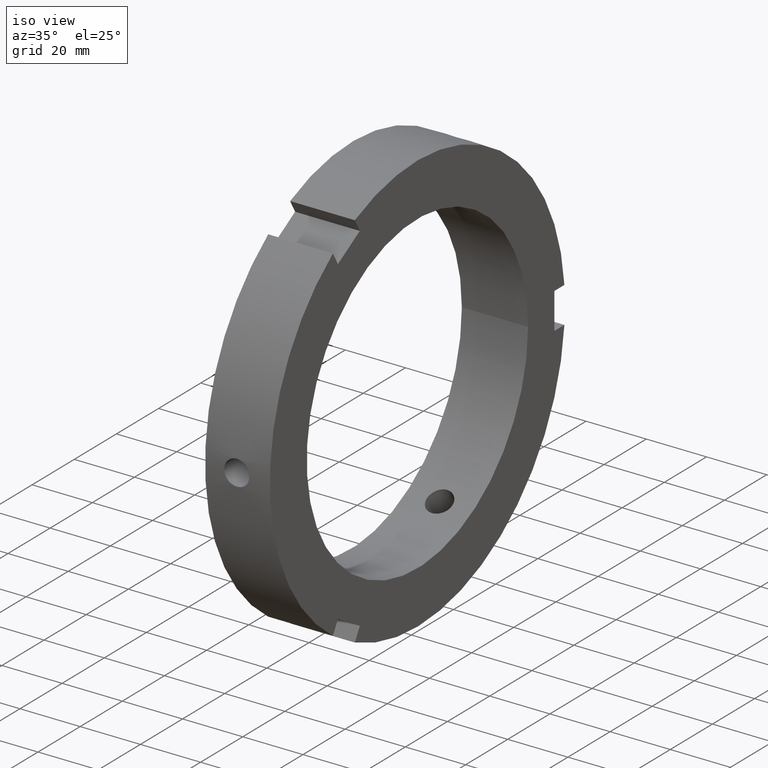
[diagram: clean part render]
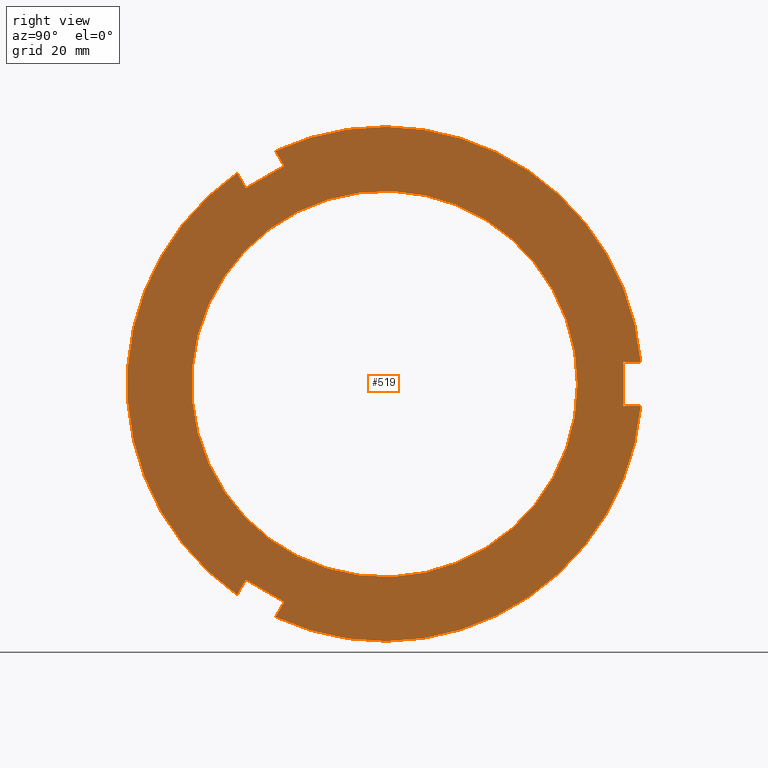
[diagram: tour spotlight — one face highlighted and labeled with its STEP entity id]
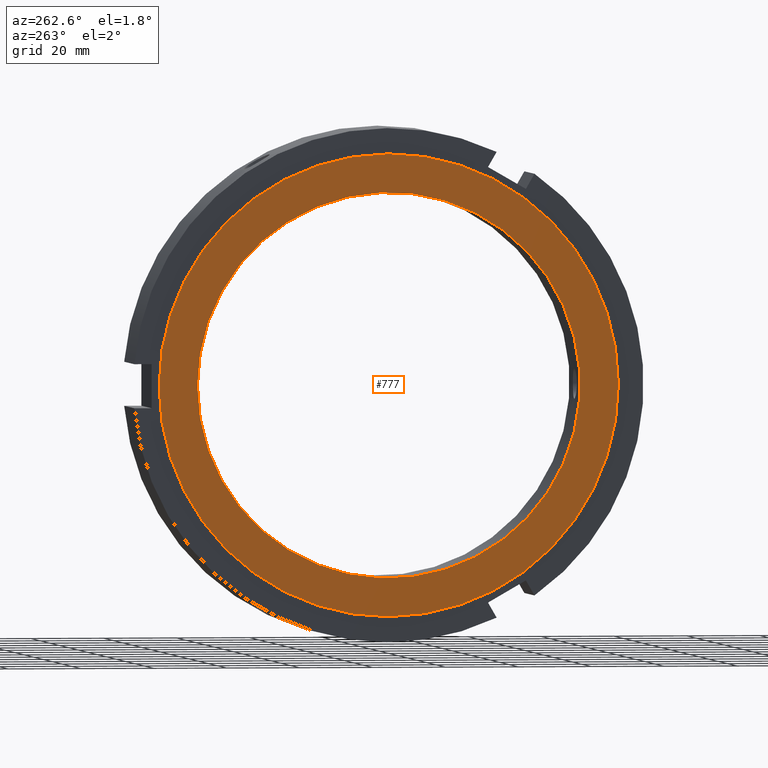
[diagram: tour spotlight — one face highlighted and labeled with its STEP entity id]
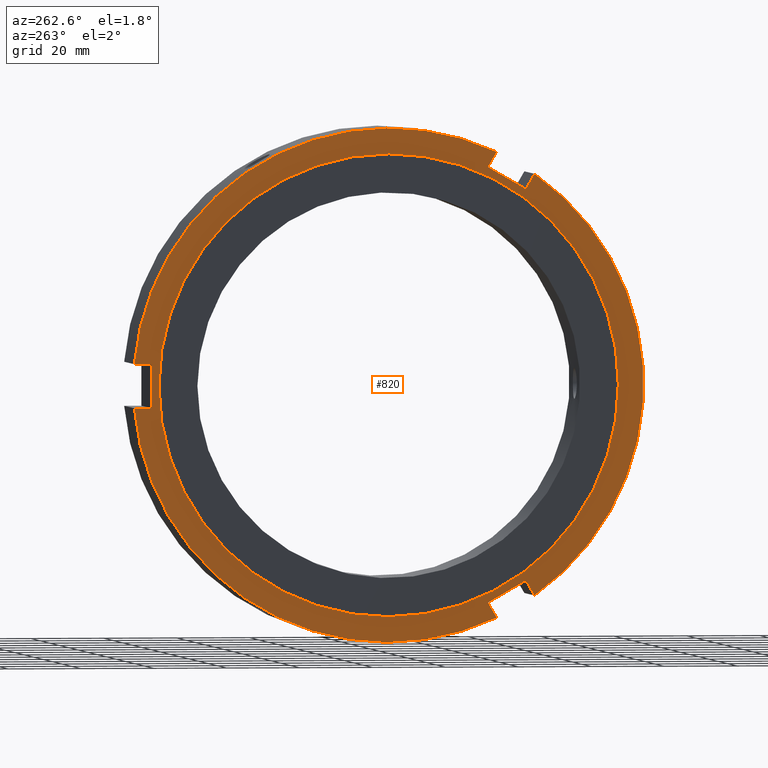
[diagram: tour spotlight — one face highlighted and labeled with its STEP entity id]
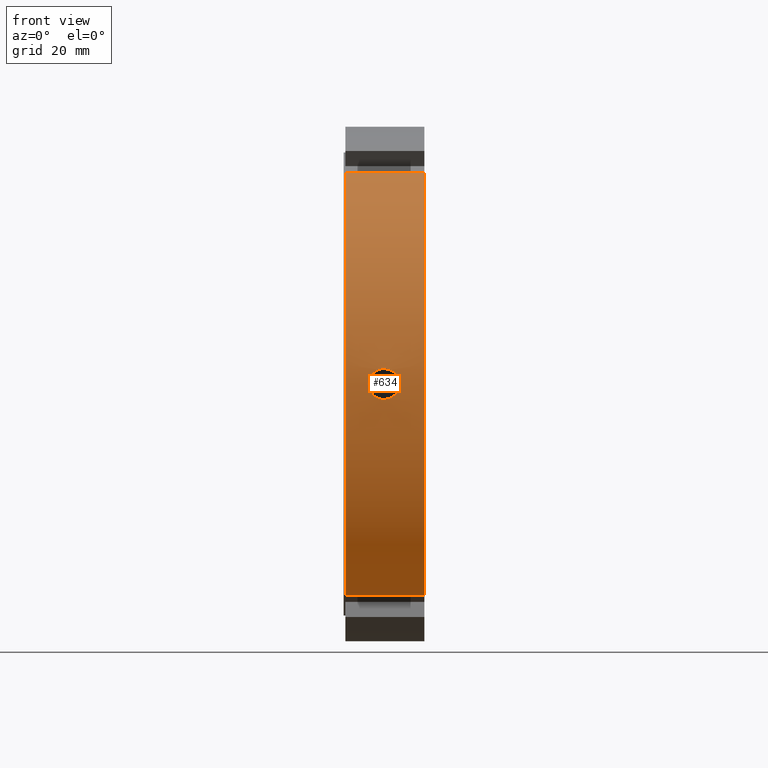
[diagram: tour spotlight — one face highlighted and labeled with its STEP entity id]
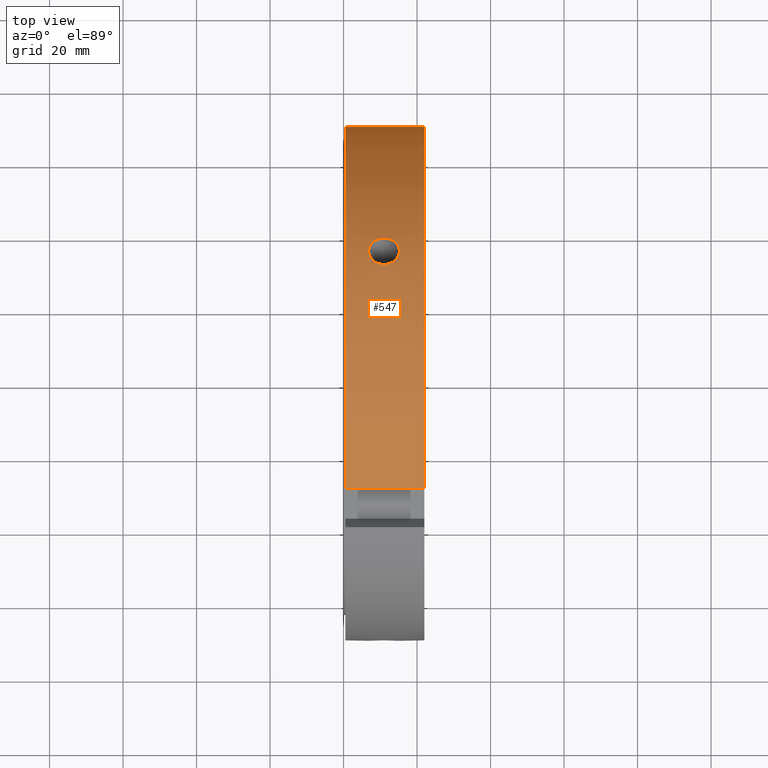
[diagram: tour spotlight — one face highlighted and labeled with its STEP entity id]
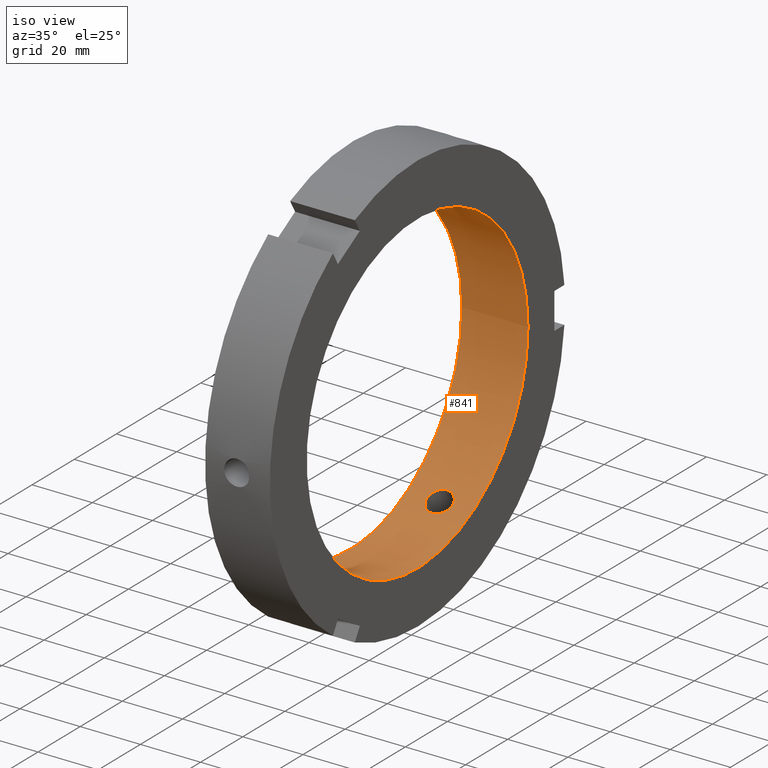
[diagram: tour spotlight — one face highlighted and labeled with its STEP entity id]
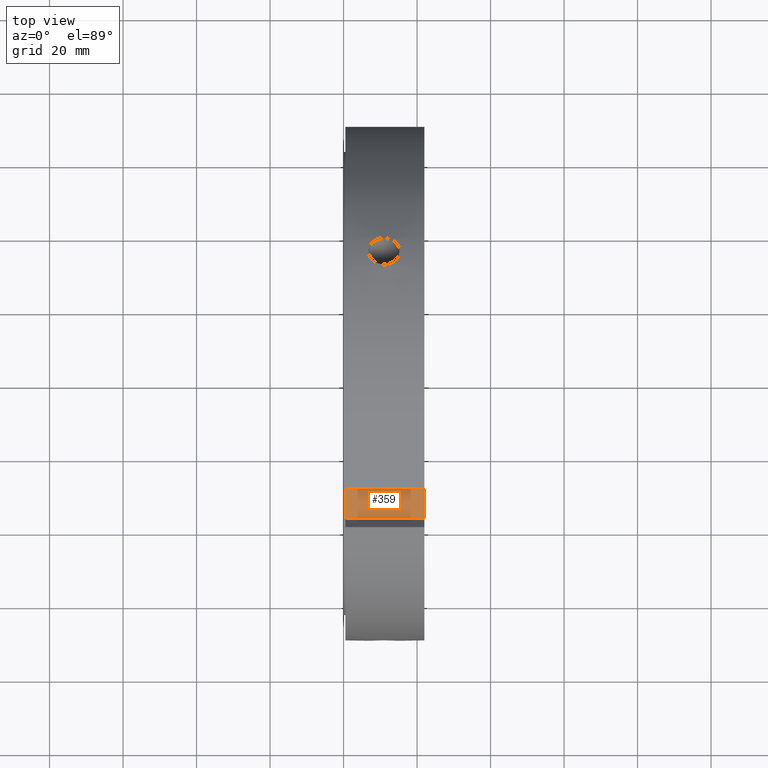
[diagram: tour spotlight — one face highlighted and labeled with its STEP entity id]
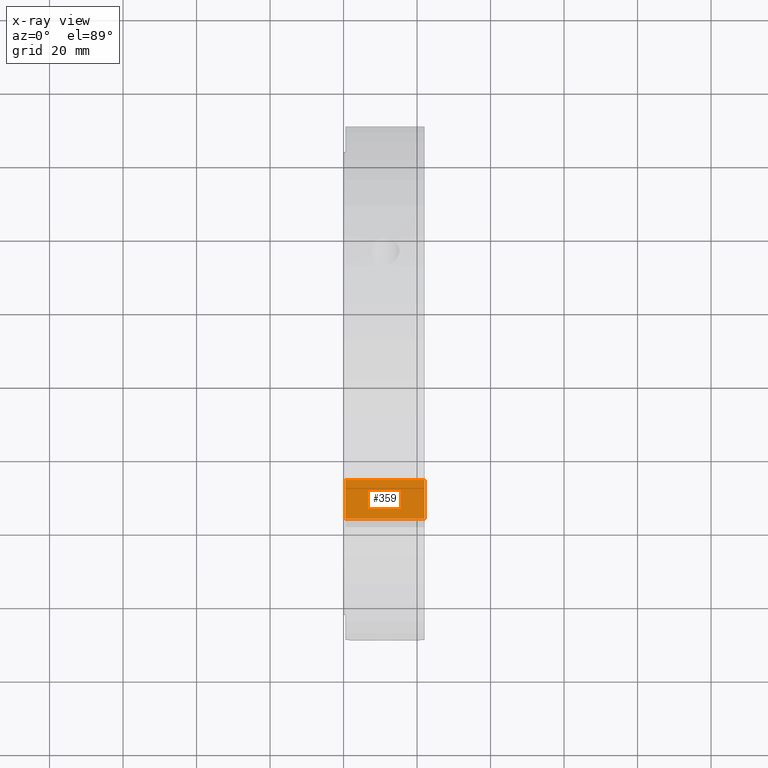
[diagram: x-ray of the same camera — body ghosted, this tour face saturated]
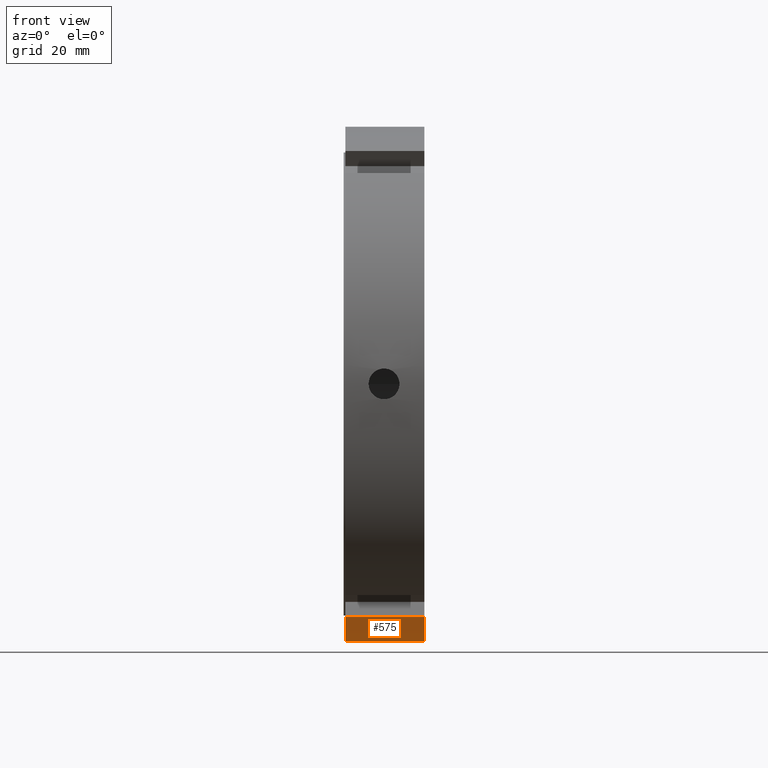
[diagram: tour spotlight — one face highlighted and labeled with its STEP entity id]
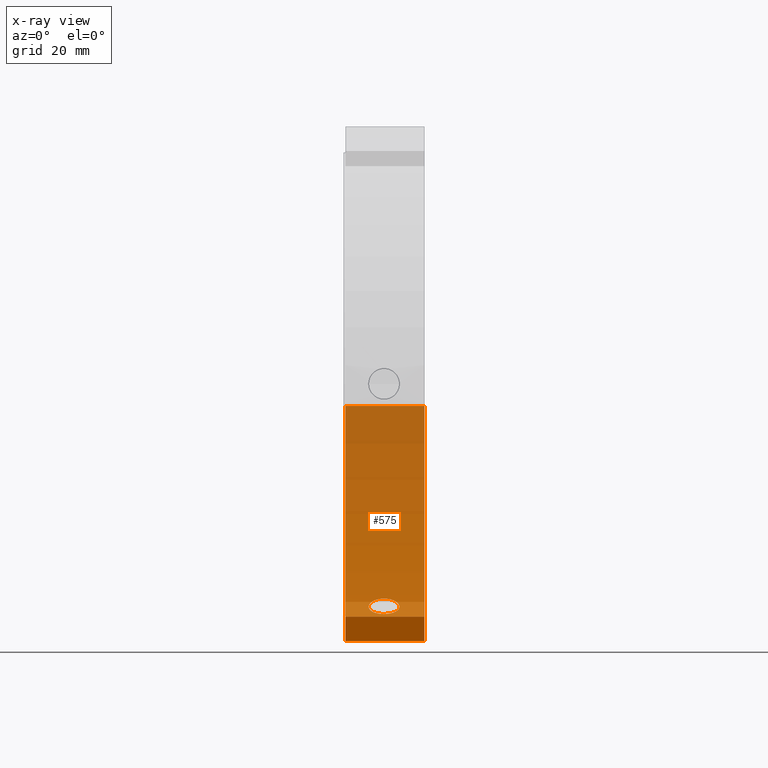
[diagram: x-ray of the same camera — body ghosted, this tour face saturated]
A machine part: a face-by-face anatomy tour. The part has 20 B-rep faces; the first image is the clean iso view, then the 8 largest visible faces are spotlighted one at a time (largest first), each with its STEP entity span.

Face 1 — right view, entity #519. In plain terms, the highlighted planar face has unit normal (1, 0, 0).
Definition (entity closure, byte-faithful):
#83=CARTESIAN_POINT('',(21.999999999999989,-37.696152422706668,-53.291651245988504));
#84=VERTEX_POINT('',#83);
#91=CARTESIAN_POINT('',(21.999999999999989,-40.067343971032045,-57.398675482165977));
#92=VERTEX_POINT('',#91);
#93=CARTESIAN_POINT('',(21.999999999999989,-40.067343971032074,-57.398675482165977));
#94=DIRECTION('',(0.0,0.500000000000001,0.866025403784438));
#95=VECTOR('',#94,4.742383096650764);
#96=LINE('',#93,#95);
#97=EDGE_CURVE('',#92,#84,#96,.T.);
#123=CARTESIAN_POINT('',(21.999999999999989,-29.675039125618788,-63.398675482165991));
#124=VERTEX_POINT('',#123);
#131=CARTESIAN_POINT('',(21.999999999999989,-27.303847577293404,-59.291651245988504));
#132=VERTEX_POINT('',#131);
#133=CARTESIAN_POINT('',(21.999999999999989,-27.303847577293414,-59.291651245988511));
#134=DIRECTION('',(0.0,-0.500000000000000,-0.866025403784439));
#135=VECTOR('',#134,4.742383096650786);
#136=LINE('',#133,#135);
#137=EDGE_CURVE('',#132,#124,#136,.T.);
#160=CARTESIAN_POINT('',(21.999999999999989,-37.696152422706675,-53.291651245988504));
#161=DIRECTION('',(0.0,0.866025403784438,-0.500000000000001));
#162=VECTOR('',#161,11.999999999999998);
#163=LINE('',#160,#162);
#164=EDGE_CURVE('',#84,#132,#163,.T.);
#273=CARTESIAN_POINT('',(21.999999999999989,-27.303847577293361,59.291651245988525));
#274=VERTEX_POINT('',#273);
#281=CARTESIAN_POINT('',(21.999999999999989,-29.675039125618742,63.398675482165999));
#282=VERTEX_POINT('',#281);
#283=CARTESIAN_POINT('',(21.999999999999989,-29.675039125618746,63.398675482165999));
#284=DIRECTION('',(0.0,0.499999999999999,-0.866025403784439));
#285=VECTOR('',#284,4.742383096650767);
#286=LINE('',#283,#285);
#287=EDGE_CURVE('',#282,#274,#286,.T.);
#313=CARTESIAN_POINT('',(21.999999999999989,-40.067343971032010,57.398675482166006));
#314=VERTEX_POINT('',#313);
#321=CARTESIAN_POINT('',(21.999999999999989,-37.696152422706618,53.291651245988525));
#322=VERTEX_POINT('',#321);
#323=CARTESIAN_POINT('',(21.999999999999989,-37.696152422706632,53.291651245988533));
#324=DIRECTION('',(0.0,-0.500000000000000,0.866025403784439));
#325=VECTOR('',#324,4.742383096650770);
#326=LINE('',#323,#325);
#327=EDGE_CURVE('',#322,#314,#326,.T.);
#350=CARTESIAN_POINT('',(21.999999999999989,-27.303847577293368,59.291651245988533));
#351=DIRECTION('',(0.0,-0.866025403784439,-0.500000000000000));
#352=VECTOR('',#351,11.999999999999996);
#353=LINE('',#350,#352);
#354=EDGE_CURVE('',#274,#322,#353,.T.);
#448=CARTESIAN_POINT('',(21.999999999999989,61.250000000000000,0.0));
#449=DIRECTION('',(1.0,0.0,0.0));
#450=DIRECTION('',(0.0,0.0,-1.0));
#451=AXIS2_PLACEMENT_3D('',#448,#449,#450);
#452=PLANE('',#451);
#453=ORIENTED_EDGE('',*,*,#97,.T.);
#454=ORIENTED_EDGE('',*,*,#164,.T.);
#455=ORIENTED_EDGE('',*,*,#137,.T.);
#456=CARTESIAN_POINT('',(21.999999999999989,69.742383096650769,-5.999999999999998));
#457=VERTEX_POINT('',#456);
#458=CARTESIAN_POINT('',(21.999999999999986,0.0,0.0));
#459=DIRECTION('',(1.0,0.0,0.0));
#460=DIRECTION('',(0.0,1.0,0.0));
#461=AXIS2_PLACEMENT_3D('',#458,#459,#460);
#462=CIRCLE('',#461,70.0);
#463=EDGE_CURVE('',#124,#457,#462,.T.);
#464=ORIENTED_EDGE('',*,*,#463,.T.);
#465=CARTESIAN_POINT('',(21.999999999999989,65.0,-5.999999999999997));
#466=VERTEX_POINT('',#465);
#467=CARTESIAN_POINT('',(21.999999999999989,69.742383096650769,-5.999999999999998));
#468=DIRECTION('',(0.0,-1.0,0.0));
#469=VECTOR('',#468,4.742383096650769);
#470=LINE('',#467,#469);
#471=EDGE_CURVE('',#457,#466,#470,.T.);
#472=ORIENTED_EDGE('',*,*,#471,.T.);
#473=CARTESIAN_POINT('',(21.999999999999989,65.0,5.999999999999997));
#474=VERTEX_POINT('',#473);
#475=CARTESIAN_POINT('',(21.999999999999989,65.0,-5.999999999999998));
#476=DIRECTION('',(0.0,0.0,1.0));
#477=VECTOR('',#476,11.999999999999996);
#478=LINE('',#475,#477);
#479=EDGE_CURVE('',#466,#474,#478,.T.);
#480=ORIENTED_EDGE('',*,*,#479,.T.);
#481=CARTESIAN_POINT('',(21.999999999999989,69.742383096650769,5.999999999999998));
#482=VERTEX_POINT('',#481);
#483=CARTESIAN_POINT('',(21.999999999999989,65.0,5.999999999999997));
#484=DIRECTION('',(0.0,1.0,0.0));
#485=VECTOR('',#484,4.742383096650769);
#486=LINE('',#483,#485);
#487=EDGE_CURVE('',#474,#482,#486,.T.);
#488=ORIENTED_EDGE('',*,*,#487,.T.);
#489=CARTESIAN_POINT('',(21.999999999999986,0.0,0.0));
#490=DIRECTION('',(1.0,0.0,0.0));
#491=DIRECTION('',(0.0,1.0,0.0));
#492=AXIS2_PLACEMENT_3D('',#489,#490,#491);
#493=CIRCLE('',#492,70.0);
#494=EDGE_CURVE('',#482,#282,#493,.T.);
#495=ORIENTED_EDGE('',*,*,#494,.T.);
#496=ORIENTED_EDGE('',*,*,#287,.T.);
#497=ORIENTED_EDGE('',*,*,#354,.T.);
#498=ORIENTED_EDGE('',*,*,#327,.T.);
#499=CARTESIAN_POINT('',(21.999999999999986,0.0,0.0));
#500=DIRECTION('',(1.0,0.0,0.0));
#501=DIRECTION('',(0.0,1.0,0.0));
#502=AXIS2_PLACEMENT_3D('',#499,#500,#501);
#503=CIRCLE('',#502,70.0);
#504=EDGE_CURVE('',#314,#92,#503,.T.);
#505=ORIENTED_EDGE('',*,*,#504,.T.);
#506=EDGE_LOOP('',(#453,#454,#455,#464,#472,#480,#488,#495,#496,#497,#498,#505));
#507=FACE_OUTER_BOUND('',#506,.T.);
#508=CARTESIAN_POINT('',(21.999999999999993,52.500000000000000,0.0));
#509=VERTEX_POINT('',#508);
#510=CARTESIAN_POINT('',(21.999999999999993,0.0,0.0));
#511=DIRECTION('',(1.0,0.0,0.0));
#512=DIRECTION('',(0.0,1.0,0.0));
#513=AXIS2_PLACEMENT_3D('',#510,#511,#512);
#514=CIRCLE('',#513,52.500000000000000);
#515=EDGE_CURVE('',#509,#509,#514,.T.);
#516=ORIENTED_EDGE('',*,*,#515,.F.);
#517=EDGE_LOOP('',(#516));
#518=FACE_BOUND('',#517,.T.);
#519=ADVANCED_FACE('',(#507,#518),#452,.T.);

Face 2 — auxiliary view, entity #777. In plain terms, the highlighted planar face has unit normal (-1, 0, 0).
Definition (entity closure, byte-faithful):
#750=CARTESIAN_POINT('',(-1.647145E-014,57.750000000000000,0.0));
#751=DIRECTION('',(-1.0,0.0,0.0));
#752=DIRECTION('',(0.0,0.0,1.0));
#753=AXIS2_PLACEMENT_3D('',#750,#751,#752);
#754=PLANE('',#753);
#755=CARTESIAN_POINT('',(-1.776357E-014,63.000000000000007,0.0));
#756=VERTEX_POINT('',#755);
#757=CARTESIAN_POINT('',(-1.776357E-014,0.0,0.0));
#758=DIRECTION('',(1.0,0.0,0.0));
#759=DIRECTION('',(0.0,1.0,0.0));
#760=AXIS2_PLACEMENT_3D('',#757,#758,#759);
#761=CIRCLE('',#760,63.000000000000007);
#762=EDGE_CURVE('',#756,#756,#761,.T.);
#763=ORIENTED_EDGE('',*,*,#762,.F.);
#764=EDGE_LOOP('',(#763));
#765=FACE_OUTER_BOUND('',#764,.T.);
#766=CARTESIAN_POINT('',(-1.517934E-014,52.500000000000000,0.0));
#767=VERTEX_POINT('',#766);
#768=CARTESIAN_POINT('',(-1.517883E-014,0.0,0.0));
#769=DIRECTION('',(1.0,0.0,0.0));
#770=DIRECTION('',(0.0,1.0,0.0));
#771=AXIS2_PLACEMENT_3D('',#768,#769,#770);
#772=CIRCLE('',#771,52.500000000000000);
#773=EDGE_CURVE('',#767,#767,#772,.T.);
#774=ORIENTED_EDGE('',*,*,#773,.T.);
#775=EDGE_LOOP('',(#774));
#776=FACE_BOUND('',#775,.T.);
#777=ADVANCED_FACE('',(#765,#776),#754,.T.);

Face 3 — auxiliary view, entity #820. In plain terms, the highlighted planar face has unit normal (-1, 0, 0).
Definition (entity closure, byte-faithful):
#73=CARTESIAN_POINT('',(0.499999999999980,-37.696152422706668,-53.291651245988504));
#74=VERTEX_POINT('',#73);
#75=CARTESIAN_POINT('',(0.499999999999980,-40.067343971032045,-57.398675482165977));
#76=VERTEX_POINT('',#75);
#77=CARTESIAN_POINT('',(0.499999999999980,-37.696152422706675,-53.291651245988511));
#78=DIRECTION('',(0.0,-0.500000000000001,-0.866025403784438));
#79=VECTOR('',#78,4.742383096650764);
#80=LINE('',#77,#79);
#81=EDGE_CURVE('',#74,#76,#80,.T.);
#113=CARTESIAN_POINT('',(0.499999999999980,-29.675039125618788,-63.398675482165991));
#114=VERTEX_POINT('',#113);
#115=CARTESIAN_POINT('',(0.499999999999980,-27.303847577293404,-59.291651245988504));
#116=VERTEX_POINT('',#115);
#117=CARTESIAN_POINT('',(0.499999999999980,-29.675039125618802,-63.398675482165999));
#118=DIRECTION('',(0.0,0.500000000000000,0.866025403784439));
#119=VECTOR('',#118,4.742383096650786);
#120=LINE('',#117,#119);
#121=EDGE_CURVE('',#114,#116,#120,.T.);
#153=CARTESIAN_POINT('',(0.499999999999980,-27.303847577293421,-59.291651245988518));
#154=DIRECTION('',(0.0,-0.866025403784438,0.500000000000001));
#155=VECTOR('',#154,12.0);
#156=LINE('',#153,#155);
#157=EDGE_CURVE('',#116,#74,#156,.T.);
#263=CARTESIAN_POINT('',(0.499999999999980,-27.303847577293361,59.291651245988525));
#264=VERTEX_POINT('',#263);
#265=CARTESIAN_POINT('',(0.499999999999980,-29.675039125618742,63.398675482165999));
#266=VERTEX_POINT('',#265);
#267=CARTESIAN_POINT('',(0.499999999999978,-27.303847577293361,59.291651245988533));
#268=DIRECTION('',(0.0,-0.500000000000000,0.866025403784439));
#269=VECTOR('',#268,4.742383096650770);
#270=LINE('',#267,#269);
#271=EDGE_CURVE('',#264,#266,#270,.T.);
#303=CARTESIAN_POINT('',(0.499999999999980,-40.067343971032010,57.398675482166006));
#304=VERTEX_POINT('',#303);
#305=CARTESIAN_POINT('',(0.499999999999980,-37.696152422706618,53.291651245988525));
#306=VERTEX_POINT('',#305);
#307=CARTESIAN_POINT('',(0.499999999999980,-40.067343971032003,57.398675482166006));
#308=DIRECTION('',(0.0,0.500000000000000,-0.866025403784439));
#309=VECTOR('',#308,4.742383096650770);
#310=LINE('',#307,#309);
#311=EDGE_CURVE('',#304,#306,#310,.T.);
#343=CARTESIAN_POINT('',(0.499999999999983,-37.696152422706632,53.291651245988518));
#344=DIRECTION('',(0.0,0.866025403784439,0.500000000000000));
#345=VECTOR('',#344,12.000000000000004);
#346=LINE('',#343,#345);
#347=EDGE_CURVE('',#306,#264,#346,.T.);
#527=CARTESIAN_POINT('',(0.499999999999980,69.742383096650769,5.999999999999998));
#528=VERTEX_POINT('',#527);
#535=CARTESIAN_POINT('',(0.499999999999980,0.0,0.0));
#536=DIRECTION('',(1.0,0.0,0.0));
#537=DIRECTION('',(0.0,1.0,0.0));
#538=AXIS2_PLACEMENT_3D('',#535,#536,#537);
#539=CIRCLE('',#538,70.0);
#540=EDGE_CURVE('',#528,#266,#539,.T.);
#554=CARTESIAN_POINT('',(0.499999999999980,69.742383096650769,-5.999999999999998));
#555=VERTEX_POINT('',#554);
#556=CARTESIAN_POINT('',(0.499999999999980,0.0,0.0));
#557=DIRECTION('',(1.0,0.0,0.0));
#558=DIRECTION('',(0.0,1.0,0.0));
#559=AXIS2_PLACEMENT_3D('',#556,#557,#558);
#560=CIRCLE('',#559,70.0);
#561=EDGE_CURVE('',#114,#555,#560,.T.);
#584=CARTESIAN_POINT('',(0.499999999999980,0.0,0.0));
#585=DIRECTION('',(1.0,0.0,0.0));
#586=DIRECTION('',(0.0,1.0,0.0));
#587=AXIS2_PLACEMENT_3D('',#584,#585,#586);
#588=CIRCLE('',#587,70.0);
#589=EDGE_CURVE('',#304,#76,#588,.T.);
#690=CARTESIAN_POINT('',(0.499999999999980,65.0,-5.999999999999997));
#691=VERTEX_POINT('',#690);
#692=CARTESIAN_POINT('',(0.499999999999980,65.0,-5.999999999999997));
#693=DIRECTION('',(0.0,1.0,0.0));
#694=VECTOR('',#693,4.742383096650769);
#695=LINE('',#692,#694);
#696=EDGE_CURVE('',#691,#555,#695,.T.);
#714=CARTESIAN_POINT('',(0.499999999999980,65.0,5.999999999999997));
#715=VERTEX_POINT('',#714);
#716=CARTESIAN_POINT('',(0.499999999999980,69.742383096650769,5.999999999999998));
#717=DIRECTION('',(0.0,-1.0,0.0));
#718=VECTOR('',#717,4.742383096650769);
#719=LINE('',#716,#718);
#720=EDGE_CURVE('',#528,#715,#719,.T.);
#738=CARTESIAN_POINT('',(0.499999999999980,65.0,5.999999999999997));
#739=DIRECTION('',(0.0,0.0,-1.0));
#740=VECTOR('',#739,11.999999999999996);
#741=LINE('',#738,#740);
#742=EDGE_CURVE('',#715,#691,#741,.T.);
#783=CARTESIAN_POINT('',(0.499999999999980,63.000000000000007,0.0));
#784=VERTEX_POINT('',#783);
#785=CARTESIAN_POINT('',(0.499999999999980,0.0,0.0));
#786=DIRECTION('',(1.0,0.0,0.0));
#787=DIRECTION('',(0.0,1.0,0.0));
#788=AXIS2_PLACEMENT_3D('',#785,#786,#787);
#789=CIRCLE('',#788,63.000000000000007);
#790=EDGE_CURVE('',#784,#784,#789,.T.);
#798=CARTESIAN_POINT('',(0.499999999999980,66.500000000000000,0.0));
#799=DIRECTION('',(-1.0,0.0,0.0));
#800=DIRECTION('',(0.0,0.0,1.0));
#801=AXIS2_PLACEMENT_3D('',#798,#799,#800);
#802=PLANE('',#801);
#803=ORIENTED_EDGE('',*,*,#81,.T.);
#804=ORIENTED_EDGE('',*,*,#589,.F.);
#805=ORIENTED_EDGE('',*,*,#311,.T.);
#806=ORIENTED_EDGE('',*,*,#347,.T.);
#807=ORIENTED_EDGE('',*,*,#271,.T.);
#808=ORIENTED_EDGE('',*,*,#540,.F.);
#809=ORIENTED_EDGE('',*,*,#720,.T.);
#810=ORIENTED_EDGE('',*,*,#742,.T.);
#811=ORIENTED_EDGE('',*,*,#696,.T.);
#812=ORIENTED_EDGE('',*,*,#561,.F.);
#813=ORIENTED_EDGE('',*,*,#121,.T.);
#814=ORIENTED_EDGE('',*,*,#157,.T.);
#815=EDGE_LOOP('',(#803,#804,#805,#806,#807,#808,#809,#810,#811,#812,#813,#814));
#816=FACE_OUTER_BOUND('',#815,.T.);
#817=ORIENTED_EDGE('',*,*,#790,.T.);
#818=EDGE_LOOP('',(#817));
#819=FACE_BOUND('',#818,.T.);
#820=ADVANCED_FACE('',(#816,#819),#802,.T.);

Face 4 — front view, entity #634. In plain terms, the highlighted cylindrical surface (partial cylindrical patch) has radius 70 mm, axis along (1, 0, 0).
Definition (entity closure, byte-faithful):
#75=CARTESIAN_POINT('',(0.499999999999980,-40.067343971032045,-57.398675482165977));
#76=VERTEX_POINT('',#75);
#91=CARTESIAN_POINT('',(21.999999999999989,-40.067343971032045,-57.398675482165977));
#92=VERTEX_POINT('',#91);
#99=CARTESIAN_POINT('',(0.499999999999980,-40.067343971032052,-57.398675482165977));
#100=DIRECTION('',(1.0,0.0,0.0));
#101=VECTOR('',#100,21.500000000000007);
#102=LINE('',#99,#101);
#103=EDGE_CURVE('',#76,#92,#102,.T.);
#303=CARTESIAN_POINT('',(0.499999999999980,-40.067343971032010,57.398675482166006));
#304=VERTEX_POINT('',#303);
#313=CARTESIAN_POINT('',(21.999999999999989,-40.067343971032010,57.398675482166006));
#314=VERTEX_POINT('',#313);
#315=CARTESIAN_POINT('',(21.999999999999989,-40.067343971032010,57.398675482166006));
#316=DIRECTION('',(-1.0,0.0,0.0));
#317=VECTOR('',#316,21.500000000000007);
#318=LINE('',#315,#317);
#319=EDGE_CURVE('',#314,#304,#318,.T.);
#499=CARTESIAN_POINT('',(21.999999999999986,0.0,0.0));
#500=DIRECTION('',(1.0,0.0,0.0));
#501=DIRECTION('',(0.0,1.0,0.0));
#502=AXIS2_PLACEMENT_3D('',#499,#500,#501);
#503=CIRCLE('',#502,70.0);
#504=EDGE_CURVE('',#314,#92,#503,.T.);
#576=CARTESIAN_POINT('',(11.249999999999982,0.0,0.0));
#577=DIRECTION('',(1.0,0.0,0.0));
#578=DIRECTION('',(0.0,1.0,0.0));
#579=AXIS2_PLACEMENT_3D('',#576,#577,#578);
#580=CYLINDRICAL_SURFACE('',#579,70.0);
#581=ORIENTED_EDGE('',*,*,#103,.T.);
#582=ORIENTED_EDGE('',*,*,#504,.F.);
#583=ORIENTED_EDGE('',*,*,#319,.T.);
#584=CARTESIAN_POINT('',(0.499999999999980,0.0,0.0));
#585=DIRECTION('',(1.0,0.0,0.0));
#586=DIRECTION('',(0.0,1.0,0.0));
#587=AXIS2_PLACEMENT_3D('',#584,#585,#586);
#588=CIRCLE('',#587,70.0);
#589=EDGE_CURVE('',#304,#76,#588,.T.);
#590=ORIENTED_EDGE('',*,*,#589,.T.);
#591=EDGE_LOOP('',(#581,#582,#583,#590));
#592=FACE_OUTER_BOUND('',#591,.T.);
#593=CARTESIAN_POINT('',(10.999999999999982,-69.874606660789155,4.188000000000000));
#594=VERTEX_POINT('',#593);
#595=CARTESIAN_POINT('',(10.999999999999982,-69.874606660789155,4.188000000000000));
#596=CARTESIAN_POINT('',(11.525989483648210,-69.874606660789155,4.188000000000000));
#597=CARTESIAN_POINT('',(12.086952821734933,-69.881157045057151,4.082855158809846));
#598=CARTESIAN_POINT('',(13.118752284293532,-69.904819251661607,3.655415369750317));
#599=CARTESIAN_POINT('',(13.589599069054628,-69.921589788627202,3.333127330163877));
#600=CARTESIAN_POINT('',(14.333127169007863,-69.953073070988069,2.589599230210645));
#601=CARTESIAN_POINT('',(14.655415331156282,-69.969830503275844,2.118752372942516));
#602=CARTESIAN_POINT('',(15.082855220814963,-69.993462738686361,1.086952676573749));
#603=CARTESIAN_POINT('',(15.187999999999985,-70.0,0.525989255637096));
#604=CARTESIAN_POINT('',(15.187999999999985,-70.0,-0.525989255637096));
#605=CARTESIAN_POINT('',(15.082855220814968,-69.993462738686361,-1.086952676573747));
#606=CARTESIAN_POINT('',(14.655415331156288,-69.969830503275844,-2.118752372942514));
#607=CARTESIAN_POINT('',(14.333127169007863,-69.953073070988069,-2.589599230210644));
#608=CARTESIAN_POINT('',(13.589599069054630,-69.921589788627202,-3.333127330163876));
#609=CARTESIAN_POINT('',(13.118752284293532,-69.904819251661607,-3.655415369750317));
#610=CARTESIAN_POINT('',(12.086952821734933,-69.881157045057151,-4.082855158809846));
#611=CARTESIAN_POINT('',(11.525989483648210,-69.874606660789155,-4.188000000000000));
#612=CARTESIAN_POINT('',(10.474010516351754,-69.874606660789155,-4.188000000000000));
#613=CARTESIAN_POINT('',(9.913047178265032,-69.881157045057151,-4.082855158809847));
#614=CARTESIAN_POINT('',(8.881247715706435,-69.904819251661607,-3.655415369750317));
#615=CARTESIAN_POINT('',(8.410400930945340,-69.921589788627202,-3.333127330163876));
#616=CARTESIAN_POINT('',(7.666872830992107,-69.953073070988069,-2.589599230210645));
#617=CARTESIAN_POINT('',(7.344584668843685,-69.969830503275844,-2.118752372942517));
#618=CARTESIAN_POINT('',(6.917144779185001,-69.993462738686361,-1.086952676573749));
#619=CARTESIAN_POINT('',(6.811999999999983,-70.0,-0.525989255637097));
#620=CARTESIAN_POINT('',(6.811999999999983,-70.0,0.525989255637095));
#621=CARTESIAN_POINT('',(6.917144779185001,-69.993462738686361,1.086952676573747));
#622=CARTESIAN_POINT('',(7.344584668843682,-69.969830503275844,2.118752372942514));
#623=CARTESIAN_POINT('',(7.666872830992104,-69.953073070988069,2.589599230210643));
#624=CARTESIAN_POINT('',(8.410400930945338,-69.921589788627202,3.333127330163876));
#625=CARTESIAN_POINT('',(8.881247715706435,-69.904819251661607,3.655415369750317));
#626=CARTESIAN_POINT('',(9.913047178265032,-69.881157045057151,4.082855158809847));
#627=CARTESIAN_POINT('',(10.474010516351752,-69.874606660789155,4.188000000000000));
#628=CARTESIAN_POINT('',(10.999999999999980,-69.874606660789155,4.188000000000000));
#629=B_SPLINE_CURVE_WITH_KNOTS('',3,(#595,#596,#597,#598,#599,#600,#601,#602,#603,#604,#605,#606,#607,#608,#609,#610,#611,#612,#613,#614,#615,#616,#617,#618,#619,#620,#621,#622,#623,#624,#625,#626,#627,#628),.UNSPECIFIED.,.T.,.U.,(4,2,2,2,2,2,2,2,2,2,2,2,2,2,2,2,4),(0.0,0.157796845094469,0.315593690188937,0.473390466880066,0.631187243571195,0.788984020262324,0.946780796953452,1.104577642047921,1.262374487142389,1.420171332236858,1.577968177331326,1.735764954022455,1.893561730713584,2.051358507404713,2.209155284095842,2.366952129190310,2.524748974284779),.UNSPECIFIED.);
#630=EDGE_CURVE('',#594,#594,#629,.T.);
#631=ORIENTED_EDGE('',*,*,#630,.T.);
#632=EDGE_LOOP('',(#631));
#633=FACE_BOUND('',#632,.T.);
#634=ADVANCED_FACE('',(#592,#633),#580,.T.);

Face 5 — top view, entity #547. In plain terms, the highlighted cylindrical surface (partial cylindrical patch) has radius 70 mm, axis along (1, 0, 0).
Definition (entity closure, byte-faithful):
#175=CARTESIAN_POINT('',(10.999999999999982,38.564217721443832,58.419184447688735));
#176=VERTEX_POINT('',#175);
#177=CARTESIAN_POINT('',(10.999999999999982,38.564217721443825,58.419184447688735));
#178=CARTESIAN_POINT('',(11.525989483648210,38.564217721443825,58.419184447688735));
#179=CARTESIAN_POINT('',(12.086952821734940,38.476434810030270,58.477429667464456));
#180=CARTESIAN_POINT('',(13.118752284293533,38.118092197418676,58.711641634023259));
#181=CARTESIAN_POINT('',(13.589599069054630,37.847367836283745,58.887309364863810));
#182=CARTESIAN_POINT('',(14.333127169007863,37.219195254477100,59.286338737159440));
#183=CARTESIAN_POINT('',(14.655415331156279,36.819808630934723,59.536274527856925));
#184=CARTESIAN_POINT('',(15.082855220814961,35.938059999967557,60.072640492255033));
#185=CARTESIAN_POINT('',(15.187999999999985,35.455520057499427,60.358783637092159));
#186=CARTESIAN_POINT('',(15.187999999999985,34.544479942500637,60.884772892729245));
#187=CARTESIAN_POINT('',(15.082855220814970,34.055402738718847,61.159593168828785));
#188=CARTESIAN_POINT('',(14.655415331156284,33.150021872341163,61.655026900799456));
#189=CARTESIAN_POINT('',(14.333127169007865,32.733877816511004,61.875937967370085));
#190=CARTESIAN_POINT('',(13.589599069054632,32.074221952343500,62.220436695027686));
#191=CARTESIAN_POINT('',(13.118752284293532,31.786727054242959,62.367057003773581));
#192=CARTESIAN_POINT('',(12.086952821734933,31.404722235026924,62.560284826274298));
#193=CARTESIAN_POINT('',(11.525989483648210,31.310388939345369,62.607184447688738));
#194=CARTESIAN_POINT('',(10.474010516351754,31.310388939345369,62.607184447688738));
#195=CARTESIAN_POINT('',(9.913047178265032,31.404722235026927,62.560284826274298));
#196=CARTESIAN_POINT('',(8.881247715706435,31.786727054242967,62.367057003773581));
#197=CARTESIAN_POINT('',(8.410400930945334,32.074221952343500,62.220436695027686));
#198=CARTESIAN_POINT('',(7.666872830992102,32.733877816511004,61.875937967370085));
#199=CARTESIAN_POINT('',(7.344584668843685,33.150021872341163,61.655026900799456));
#200=CARTESIAN_POINT('',(6.917144779184998,34.055402738718847,61.159593168828785));
#201=CARTESIAN_POINT('',(6.811999999999980,34.544479942500637,60.884772892729245));
#202=CARTESIAN_POINT('',(6.811999999999985,35.455520057499427,60.358783637092159));
#203=CARTESIAN_POINT('',(6.917144779185003,35.938059999967557,60.072640492255033));
#204=CARTESIAN_POINT('',(7.344584668843685,36.819808630934723,59.536274527856925));
#205=CARTESIAN_POINT('',(7.666872830992104,37.219195254477100,59.286338737159440));
#206=CARTESIAN_POINT('',(8.410400930945336,37.847367836283745,58.887309364863796));
#207=CARTESIAN_POINT('',(8.881247715706431,38.118092197418683,58.711641634023259));
#208=CARTESIAN_POINT('',(9.913047178265025,38.476434810030270,58.477429667464456));
#209=CARTESIAN_POINT('',(10.474010516351754,38.564217721443825,58.419184447688735));
#210=CARTESIAN_POINT('',(10.999999999999982,38.564217721443825,58.419184447688735));
#211=B_SPLINE_CURVE_WITH_KNOTS('',3,(#177,#178,#179,#180,#181,#182,#183,#184,#185,#186,#187,#188,#189,#190,#191,#192,#193,#194,#195,#196,#197,#198,#199,#200,#201,#202,#203,#204,#205,#206,#207,#208,#209,#210),.UNSPECIFIED.,.T.,.U.,(4,2,2,2,2,2,2,2,2,2,2,2,2,2,2,2,4),(0.0,0.157796845094468,0.315593690188936,0.473390466880065,0.631187243571194,0.788984020262324,0.946780796953453,1.104577642047921,1.262374487142390,1.420171332236858,1.577968177331327,1.735764954022456,1.893561730713585,2.051358507404714,2.209155284095843,2.366952129190311,2.524748974284780),.UNSPECIFIED.);
#212=EDGE_CURVE('',#176,#176,#211,.T.);
#265=CARTESIAN_POINT('',(0.499999999999980,-29.675039125618742,63.398675482165999));
#266=VERTEX_POINT('',#265);
#281=CARTESIAN_POINT('',(21.999999999999989,-29.675039125618742,63.398675482165999));
#282=VERTEX_POINT('',#281);
#289=CARTESIAN_POINT('',(0.499999999999980,-29.675039125618742,63.398675482165999));
#290=DIRECTION('',(1.0,0.0,0.0));
#291=VECTOR('',#290,21.500000000000007);
#292=LINE('',#289,#291);
#293=EDGE_CURVE('',#266,#282,#292,.T.);
#481=CARTESIAN_POINT('',(21.999999999999989,69.742383096650769,5.999999999999998));
#482=VERTEX_POINT('',#481);
#489=CARTESIAN_POINT('',(21.999999999999986,0.0,0.0));
#490=DIRECTION('',(1.0,0.0,0.0));
#491=DIRECTION('',(0.0,1.0,0.0));
#492=AXIS2_PLACEMENT_3D('',#489,#490,#491);
#493=CIRCLE('',#492,70.0);
#494=EDGE_CURVE('',#482,#282,#493,.T.);
#520=CARTESIAN_POINT('',(11.249999999999982,0.0,0.0));
#521=DIRECTION('',(1.0,0.0,0.0));
#522=DIRECTION('',(0.0,1.0,0.0));
#523=AXIS2_PLACEMENT_3D('',#520,#521,#522);
#524=CYLINDRICAL_SURFACE('',#523,70.0);
#525=ORIENTED_EDGE('',*,*,#293,.T.);
#526=ORIENTED_EDGE('',*,*,#494,.F.);
#527=CARTESIAN_POINT('',(0.499999999999980,69.742383096650769,5.999999999999998));
#528=VERTEX_POINT('',#527);
#529=CARTESIAN_POINT('',(21.999999999999989,69.742383096650769,5.999999999999998));
#530=DIRECTION('',(-1.0,0.0,0.0));
#531=VECTOR('',#530,21.500000000000007);
#532=LINE('',#529,#531);
#533=EDGE_CURVE('',#482,#528,#532,.T.);
#534=ORIENTED_EDGE('',*,*,#533,.T.);
#535=CARTESIAN_POINT('',(0.499999999999980,0.0,0.0));
#536=DIRECTION('',(1.0,0.0,0.0));
#537=DIRECTION('',(0.0,1.0,0.0));
#538=AXIS2_PLACEMENT_3D('',#535,#536,#537);
#539=CIRCLE('',#538,70.0);
#540=EDGE_CURVE('',#528,#266,#539,.T.);
#541=ORIENTED_EDGE('',*,*,#540,.T.);
#542=EDGE_LOOP('',(#525,#526,#534,#541));
#543=FACE_OUTER_BOUND('',#542,.T.);
#544=ORIENTED_EDGE('',*,*,#212,.T.);
#545=EDGE_LOOP('',(#544));
#546=FACE_BOUND('',#545,.T.);
#547=ADVANCED_FACE('',(#543,#546),#524,.T.);

Face 6 — iso view, entity #841. In plain terms, the highlighted cylindrical surface (bore or boss wall) has radius 52.5 mm, axis along (1, 0, 0).
Definition (entity closure, byte-faithful):
#216=CARTESIAN_POINT('',(10.999999999999982,29.793260410316059,43.227440753797737));
#217=VERTEX_POINT('',#216);
#218=CARTESIAN_POINT('',(10.999999999999982,29.793260410316048,43.227440753797744));
#219=CARTESIAN_POINT('',(10.473905149620801,29.793260410316048,43.227440753797744));
#220=CARTESIAN_POINT('',(9.912896674897823,29.706541726946661,43.287611516915739));
#221=CARTESIAN_POINT('',(8.881126391275100,29.352136239677542,43.528703521414364));
#222=CARTESIAN_POINT('',(8.410345540963418,29.084231169399807,43.709222204114880));
#223=CARTESIAN_POINT('',(7.666928570403846,28.461413552845237,44.117304389512562));
#224=CARTESIAN_POINT('',(7.344656237044656,28.064880241122903,44.372050699310186));
#225=CARTESIAN_POINT('',(6.917185775473516,27.187099255486928,44.915231495334993));
#226=CARTESIAN_POINT('',(6.811999999999983,26.705610879392392,45.203286634820124));
#227=CARTESIAN_POINT('',(6.811999999999983,25.794389120607654,45.729380762545937));
#228=CARTESIAN_POINT('',(6.917185775473510,25.304181864075602,46.002334358128167));
#229=CARTESIAN_POINT('',(7.344656237044650,24.394883003052268,46.490924592635466));
#230=CARTESIAN_POINT('',(7.666928570403851,23.975999571386019,46.706959359134963));
#231=CARTESIAN_POINT('',(8.410345540963423,23.311181223722475,47.042294144296861));
#232=CARTESIAN_POINT('',(8.881126391275100,23.020894923507235,47.184047399609753));
#233=CARTESIAN_POINT('',(9.912896674897819,22.634900379327554,47.370425552576108));
#234=CARTESIAN_POINT('',(10.473905149620801,22.539431628217592,47.415440753797746));
#235=CARTESIAN_POINT('',(11.526094850379165,22.539431628217592,47.415440753797746));
#236=CARTESIAN_POINT('',(12.087103325102149,22.634900379327554,47.370425552576108));
#237=CARTESIAN_POINT('',(13.118873608724869,23.020894923507235,47.184047399609753));
#238=CARTESIAN_POINT('',(13.589654459036545,23.311181223722475,47.042294144296861));
#239=CARTESIAN_POINT('',(14.333071429596115,23.975999571386019,46.706959359134970));
#240=CARTESIAN_POINT('',(14.655343762955312,24.394883003052257,46.490924592635466));
#241=CARTESIAN_POINT('',(15.082814224526452,25.304181864075588,46.002334358128174));
#242=CARTESIAN_POINT('',(15.187999999999985,25.794389120607654,45.729380762545937));
#243=CARTESIAN_POINT('',(15.187999999999985,26.705610879392392,45.203286634820124));
#244=CARTESIAN_POINT('',(15.082814224526453,27.187099255486928,44.915231495334993));
#245=CARTESIAN_POINT('',(14.655343762955313,28.064880241122903,44.372050699310186));
#246=CARTESIAN_POINT('',(14.333071429596121,28.461413552845237,44.117304389512562));
#247=CARTESIAN_POINT('',(13.589654459036549,29.084231169399807,43.709222204114880));
#248=CARTESIAN_POINT('',(13.118873608724872,29.352136239677534,43.528703521414364));
#249=CARTESIAN_POINT('',(12.087103325102150,29.706541726946657,43.287611516915739));
#250=CARTESIAN_POINT('',(11.526094850379167,29.793260410316048,43.227440753797744));
#251=CARTESIAN_POINT('',(10.999999999999986,29.793260410316048,43.227440753797744));
#252=B_SPLINE_CURVE_WITH_KNOTS('',3,(#218,#219,#220,#221,#222,#223,#224,#225,#226,#227,#228,#229,#230,#231,#232,#233,#234,#235,#236,#237,#238,#239,#240,#241,#242,#243,#244,#245,#246,#247,#248,#249,#250,#251),.UNSPECIFIED.,.T.,.U.,(4,2,2,2,2,2,2,2,2,2,2,2,2,2,2,2,4),(0.0,0.157828455113754,0.315656910227509,0.473485148545252,0.631313386862996,0.789141625180740,0.946969863498484,1.104798318612238,1.262626773725993,1.420455228839747,1.578283683953502,1.736111922271245,1.893940160588989,2.051768398906733,2.209596637224477,2.367425092338231,2.525253547451985),.UNSPECIFIED.);
#253=EDGE_CURVE('',#217,#217,#252,.T.);
#406=CARTESIAN_POINT('',(10.999999999999982,22.539431628217571,-47.415440753797753));
#407=VERTEX_POINT('',#406);
#408=CARTESIAN_POINT('',(10.999999999999982,22.539431628217571,-47.415440753797753));
#409=CARTESIAN_POINT('',(10.473905149620800,22.539431628217571,-47.415440753797753));
#410=CARTESIAN_POINT('',(9.912896674897812,22.634900379327540,-47.370425552576123));
#411=CARTESIAN_POINT('',(8.881126391275085,23.020894923507221,-47.184047399609767));
#412=CARTESIAN_POINT('',(8.410345540963419,23.311181223722478,-47.042294144296847));
#413=CARTESIAN_POINT('',(7.666928570403854,23.975999571386026,-46.706959359134963));
#414=CARTESIAN_POINT('',(7.344656237044640,24.394883003052268,-46.490924592635480));
#415=CARTESIAN_POINT('',(6.917185775473510,25.304181864075588,-46.002334358128181));
#416=CARTESIAN_POINT('',(6.811999999999980,25.794389120607640,-45.729380762545944));
#417=CARTESIAN_POINT('',(6.811999999999985,26.705610879392374,-45.203286634820131));
#418=CARTESIAN_POINT('',(6.917185775473516,27.187099255486910,-44.915231495335007));
#419=CARTESIAN_POINT('',(7.344656237044655,28.064880241122889,-44.372050699310208));
#420=CARTESIAN_POINT('',(7.666928570403849,28.461413552845222,-44.117304389512590));
#421=CARTESIAN_POINT('',(8.410345540963421,29.084231169399789,-43.709222204114909));
#422=CARTESIAN_POINT('',(8.881126391275100,29.352136239677517,-43.528703521414364));
#423=CARTESIAN_POINT('',(9.912896674897821,29.706541726946639,-43.287611516915739));
#424=CARTESIAN_POINT('',(10.473905149620801,29.793260410316016,-43.227440753797751));
#425=CARTESIAN_POINT('',(11.526094850379160,29.793260410316016,-43.227440753797751));
#426=CARTESIAN_POINT('',(12.087103325102145,29.706541726946639,-43.287611516915739));
#427=CARTESIAN_POINT('',(13.118873608724865,29.352136239677517,-43.528703521414364));
#428=CARTESIAN_POINT('',(13.589654459036545,29.084231169399793,-43.709222204114901));
#429=CARTESIAN_POINT('',(14.333071429596117,28.461413552845229,-44.117304389512569));
#430=CARTESIAN_POINT('',(14.655343762955304,28.064880241122893,-44.372050699310194));
#431=CARTESIAN_POINT('',(15.082814224526446,27.187099255486913,-44.915231495335007));
#432=CARTESIAN_POINT('',(15.187999999999981,26.705610879392374,-45.203286634820131));
#433=CARTESIAN_POINT('',(15.187999999999986,25.794389120607633,-45.729380762545944));
#434=CARTESIAN_POINT('',(15.082814224526455,25.304181864075581,-46.002334358128181));
#435=CARTESIAN_POINT('',(14.655343762955322,24.394883003052257,-46.490924592635480));
#436=CARTESIAN_POINT('',(14.333071429596114,23.975999571386009,-46.706959359134963));
#437=CARTESIAN_POINT('',(13.589654459036545,23.311181223722460,-47.042294144296847));
#438=CARTESIAN_POINT('',(13.118873608724877,23.020894923507210,-47.184047399609753));
#439=CARTESIAN_POINT('',(12.087103325102152,22.634900379327533,-47.370425552576108));
#440=CARTESIAN_POINT('',(11.526094850379165,22.539431628217564,-47.415440753797753));
#441=CARTESIAN_POINT('',(10.999999999999980,22.539431628217564,-47.415440753797753));
#442=B_SPLINE_CURVE_WITH_KNOTS('',3,(#408,#409,#410,#411,#412,#413,#414,#415,#416,#417,#418,#419,#420,#421,#422,#423,#424,#425,#426,#427,#428,#429,#430,#431,#432,#433,#434,#435,#436,#437,#438,#439,#440,#441),.UNSPECIFIED.,.T.,.U.,(4,2,2,2,2,2,2,2,2,2,2,2,2,2,2,2,4),(0.0,0.157828455113755,0.315656910227511,0.473485148545253,0.631313386862995,0.789141625180739,0.946969863498482,1.104798318612236,1.262626773725991,1.420455228839745,1.578283683953499,1.736111922271243,1.893940160588987,2.051768398906730,2.209596637224473,2.367425092338228,2.525253547451983),.UNSPECIFIED.);
#443=EDGE_CURVE('',#407,#407,#442,.T.);
#508=CARTESIAN_POINT('',(21.999999999999993,52.500000000000000,0.0));
#509=VERTEX_POINT('',#508);
#510=CARTESIAN_POINT('',(21.999999999999993,0.0,0.0));
#511=DIRECTION('',(1.0,0.0,0.0));
#512=DIRECTION('',(0.0,1.0,0.0));
#513=AXIS2_PLACEMENT_3D('',#510,#511,#512);
#514=CIRCLE('',#513,52.500000000000000);
#515=EDGE_CURVE('',#509,#509,#514,.T.);
#643=CARTESIAN_POINT('',(10.999999999999982,-52.332692038533615,4.188000000000000));
#644=VERTEX_POINT('',#643);
#645=CARTESIAN_POINT('',(10.999999999999982,-52.332692038533615,4.188000000000000));
#646=CARTESIAN_POINT('',(10.473905149620801,-52.332692038533615,4.188000000000000));
#647=CARTESIAN_POINT('',(9.912896674897819,-52.341442106274194,4.082814035660380));
#648=CARTESIAN_POINT('',(8.881126391275098,-52.373031163184748,3.655343878195405));
#649=CARTESIAN_POINT('',(8.410345540963421,-52.395412393122257,3.333071940181961));
#650=CARTESIAN_POINT('',(7.666928570403849,-52.437413124231242,2.589654969622389));
#651=CARTESIAN_POINT('',(7.344656237044652,-52.459763244175157,2.118873893325266));
#652=CARTESIAN_POINT('',(6.917185775473515,-52.491281119562515,1.087102862793163));
#653=CARTESIAN_POINT('',(6.811999999999983,-52.500000000000000,0.526094127725811));
#654=CARTESIAN_POINT('',(6.811999999999983,-52.500000000000000,-0.526094127725811));
#655=CARTESIAN_POINT('',(6.917185775473515,-52.491281119562515,-1.087102862793163));
#656=CARTESIAN_POINT('',(7.344656237044652,-52.459763244175157,-2.118873893325266));
#657=CARTESIAN_POINT('',(7.666928570403849,-52.437413124231242,-2.589654969622389));
#658=CARTESIAN_POINT('',(8.410345540963421,-52.395412393122257,-3.333071940181961));
#659=CARTESIAN_POINT('',(8.881126391275096,-52.373031163184748,-3.655343878195406));
#660=CARTESIAN_POINT('',(9.912896674897818,-52.341442106274194,-4.082814035660380));
#661=CARTESIAN_POINT('',(10.473905149620801,-52.332692038533615,-4.188000000000000));
#662=CARTESIAN_POINT('',(11.526094850379165,-52.332692038533615,-4.188000000000000));
#663=CARTESIAN_POINT('',(12.087103325102147,-52.341442106274194,-4.082814035660380));
#664=CARTESIAN_POINT('',(13.118873608724870,-52.373031163184748,-3.655343878195406));
#665=CARTESIAN_POINT('',(13.589654459036545,-52.395412393122257,-3.333071940181961));
#666=CARTESIAN_POINT('',(14.333071429596117,-52.437413124231242,-2.589654969622389));
#667=CARTESIAN_POINT('',(14.655343762955313,-52.459763244175157,-2.118873893325265));
#668=CARTESIAN_POINT('',(15.082814224526452,-52.491281119562515,-1.087102862793161));
#669=CARTESIAN_POINT('',(15.187999999999985,-52.500000000000000,-0.526094127725811));
#670=CARTESIAN_POINT('',(15.187999999999985,-52.500000000000000,0.526094127725812));
#671=CARTESIAN_POINT('',(15.082814224526452,-52.491281119562501,1.087102862793165));
#672=CARTESIAN_POINT('',(14.655343762955312,-52.459763244175150,2.118873893325267));
#673=CARTESIAN_POINT('',(14.333071429596115,-52.437413124231242,2.589654969622389));
#674=CARTESIAN_POINT('',(13.589654459036545,-52.395412393122250,3.333071940181960));
#675=CARTESIAN_POINT('',(13.118873608724870,-52.373031163184763,3.655343878195406));
#676=CARTESIAN_POINT('',(12.087103325102147,-52.341442106274208,4.082814035660380));
#677=CARTESIAN_POINT('',(11.526094850379165,-52.332692038533615,4.188000000000000));
#678=CARTESIAN_POINT('',(10.999999999999982,-52.332692038533615,4.188000000000000));
#679=B_SPLINE_CURVE_WITH_KNOTS('',3,(#645,#646,#647,#648,#649,#650,#651,#652,#653,#654,#655,#656,#657,#658,#659,#660,#661,#662,#663,#664,#665,#666,#667,#668,#669,#670,#671,#672,#673,#674,#675,#676,#677,#678),.UNSPECIFIED.,.T.,.U.,(4,2,2,2,2,2,2,2,2,2,2,2,2,2,2,2,4),(0.0,0.157828455113755,0.315656910227509,0.473485148545253,0.631313386862996,0.789141625180739,0.946969863498483,1.104798318612238,1.262626773725992,1.420455228839747,1.578283683953502,1.736111922271245,1.893940160588988,2.051768398906732,2.209596637224475,2.367425092338229,2.525253547451984),.UNSPECIFIED.);
#680=EDGE_CURVE('',#644,#644,#679,.T.);
#766=CARTESIAN_POINT('',(-1.517934E-014,52.500000000000000,0.0));
#767=VERTEX_POINT('',#766);
#768=CARTESIAN_POINT('',(-1.517883E-014,0.0,0.0));
#769=DIRECTION('',(1.0,0.0,0.0));
#770=DIRECTION('',(0.0,1.0,0.0));
#771=AXIS2_PLACEMENT_3D('',#768,#769,#770);
#772=CIRCLE('',#771,52.500000000000000);
#773=EDGE_CURVE('',#767,#767,#772,.T.);
#821=CARTESIAN_POINT('',(10.999999999999989,0.0,0.0));
#822=DIRECTION('',(1.0,0.0,0.0));
#823=DIRECTION('',(0.0,1.0,0.0));
#824=AXIS2_PLACEMENT_3D('',#821,#822,#823);
#825=CYLINDRICAL_SURFACE('',#824,52.500000000000000);
#826=ORIENTED_EDGE('',*,*,#773,.F.);
#827=EDGE_LOOP('',(#826));
#828=FACE_OUTER_BOUND('',#827,.T.);
#829=ORIENTED_EDGE('',*,*,#253,.T.);
#830=EDGE_LOOP('',(#829));
#831=FACE_BOUND('',#830,.T.);
#832=ORIENTED_EDGE('',*,*,#443,.T.);
#833=EDGE_LOOP('',(#832));
#834=FACE_BOUND('',#833,.T.);
#835=ORIENTED_EDGE('',*,*,#680,.T.);
#836=EDGE_LOOP('',(#835));
#837=FACE_BOUND('',#836,.T.);
#838=ORIENTED_EDGE('',*,*,#515,.T.);
#839=EDGE_LOOP('',(#838));
#840=FACE_BOUND('',#839,.T.);
#841=ADVANCED_FACE('',(#828,#831,#834,#837,#840),#825,.F.);

Face 7 — top view, entity #359. An x-ray twin of the same camera follows (body ghosted, this face saturated) — the face is partly hidden behind the body. In plain terms, the highlighted planar face has unit normal (0, 0.5, -0.866).
Definition (entity closure, byte-faithful):
#263=CARTESIAN_POINT('',(0.499999999999980,-27.303847577293361,59.291651245988525));
#264=VERTEX_POINT('',#263);
#273=CARTESIAN_POINT('',(21.999999999999989,-27.303847577293361,59.291651245988525));
#274=VERTEX_POINT('',#273);
#275=CARTESIAN_POINT('',(21.999999999999989,-27.303847577293361,59.291651245988525));
#276=DIRECTION('',(-1.0,0.0,0.0));
#277=VECTOR('',#276,21.500000000000007);
#278=LINE('',#275,#277);
#279=EDGE_CURVE('',#274,#264,#278,.T.);
#305=CARTESIAN_POINT('',(0.499999999999980,-37.696152422706618,53.291651245988525));
#306=VERTEX_POINT('',#305);
#321=CARTESIAN_POINT('',(21.999999999999989,-37.696152422706618,53.291651245988525));
#322=VERTEX_POINT('',#321);
#329=CARTESIAN_POINT('',(21.999999999999989,-37.696152422706618,53.291651245988525));
#330=DIRECTION('',(-1.0,0.0,0.0));
#331=VECTOR('',#330,21.500000000000007);
#332=LINE('',#329,#331);
#333=EDGE_CURVE('',#322,#306,#332,.T.);
#338=CARTESIAN_POINT('',(21.999999999999989,-37.696152422706618,53.291651245988525));
#339=DIRECTION('',(0.0,0.500000000000000,-0.866025403784439));
#340=DIRECTION('',(0.0,0.866025403784439,0.500000000000000));
#341=AXIS2_PLACEMENT_3D('',#338,#339,#340);
#342=PLANE('',#341);
#343=CARTESIAN_POINT('',(0.499999999999983,-37.696152422706632,53.291651245988518));
#344=DIRECTION('',(0.0,0.866025403784439,0.500000000000000));
#345=VECTOR('',#344,12.000000000000004);
#346=LINE('',#343,#345);
#347=EDGE_CURVE('',#306,#264,#346,.T.);
#348=ORIENTED_EDGE('',*,*,#347,.F.);
#349=ORIENTED_EDGE('',*,*,#333,.F.);
#350=CARTESIAN_POINT('',(21.999999999999989,-27.303847577293368,59.291651245988533));
#351=DIRECTION('',(0.0,-0.866025403784439,-0.500000000000000));
#352=VECTOR('',#351,11.999999999999996);
#353=LINE('',#350,#352);
#354=EDGE_CURVE('',#274,#322,#353,.T.);
#355=ORIENTED_EDGE('',*,*,#354,.F.);
#356=ORIENTED_EDGE('',*,*,#279,.T.);
#357=EDGE_LOOP('',(#348,#349,#355,#356));
#358=FACE_OUTER_BOUND('',#357,.T.);
#359=ADVANCED_FACE('',(#358),#342,.F.);

Face 8 — front view, entity #575. An x-ray twin of the same camera follows (body ghosted, this face saturated) — the face is partly hidden behind the body. In plain terms, the highlighted cylindrical surface (partial cylindrical patch) has radius 70 mm, axis along (1, 0, 0).
Definition (entity closure, byte-faithful):
#113=CARTESIAN_POINT('',(0.499999999999980,-29.675039125618788,-63.398675482165991));
#114=VERTEX_POINT('',#113);
#123=CARTESIAN_POINT('',(21.999999999999989,-29.675039125618788,-63.398675482165991));
#124=VERTEX_POINT('',#123);
#125=CARTESIAN_POINT('',(21.999999999999989,-29.675039125618781,-63.398675482165984));
#126=DIRECTION('',(-1.0,0.0,0.0));
#127=VECTOR('',#126,21.500000000000007);
#128=LINE('',#125,#127);
#129=EDGE_CURVE('',#124,#114,#128,.T.);
#365=CARTESIAN_POINT('',(10.999999999999982,31.310388939345334,-62.607184447688759));
#366=VERTEX_POINT('',#365);
#367=CARTESIAN_POINT('',(10.999999999999982,31.310388939345323,-62.607184447688759));
#368=CARTESIAN_POINT('',(11.525989483648214,31.310388939345323,-62.607184447688759));
#369=CARTESIAN_POINT('',(12.086952821734940,31.404722235026881,-62.560284826274327));
#370=CARTESIAN_POINT('',(13.118752284293540,31.786727054242920,-62.367057003773610));
#371=CARTESIAN_POINT('',(13.589599069054630,32.074221952343478,-62.220436695027686));
#372=CARTESIAN_POINT('',(14.333127169007858,32.733877816510990,-61.875937967370106));
#373=CARTESIAN_POINT('',(14.655415331156295,33.150021872341149,-61.655026900799463));
#374=CARTESIAN_POINT('',(15.082855220814968,34.055402738718826,-61.159593168828799));
#375=CARTESIAN_POINT('',(15.187999999999985,34.544479942500594,-60.884772892729259));
#376=CARTESIAN_POINT('',(15.187999999999985,35.455520057499385,-60.358783637092166));
#377=CARTESIAN_POINT('',(15.082855220814963,35.938059999967521,-60.072640492255054));
#378=CARTESIAN_POINT('',(14.655415331156279,36.819808630934688,-59.536274527856953));
#379=CARTESIAN_POINT('',(14.333127169007865,37.219195254477064,-59.286338737159454));
#380=CARTESIAN_POINT('',(13.589599069054630,37.847367836283709,-58.887309364863810));
#381=CARTESIAN_POINT('',(13.118752284293528,38.118092197418640,-58.711641634023273));
#382=CARTESIAN_POINT('',(12.086952821734936,38.476434810030227,-58.477429667464477));
#383=CARTESIAN_POINT('',(11.525989483648210,38.564217721443782,-58.419184447688764));
#384=CARTESIAN_POINT('',(10.474010516351754,38.564217721443782,-58.419184447688764));
#385=CARTESIAN_POINT('',(9.913047178265028,38.476434810030241,-58.477429667464484));
#386=CARTESIAN_POINT('',(8.881247715706429,38.118092197418640,-58.711641634023280));
#387=CARTESIAN_POINT('',(8.410400930945334,37.847367836283688,-58.887309364863825));
#388=CARTESIAN_POINT('',(7.666872830992104,37.219195254477043,-59.286338737159454));
#389=CARTESIAN_POINT('',(7.344584668843684,36.819808630934688,-59.536274527856953));
#390=CARTESIAN_POINT('',(6.917144779185001,35.938059999967521,-60.072640492255054));
#391=CARTESIAN_POINT('',(6.811999999999983,35.455520057499378,-60.358783637092166));
#392=CARTESIAN_POINT('',(6.811999999999983,34.544479942500594,-60.884772892729259));
#393=CARTESIAN_POINT('',(6.917144779184997,34.055402738718819,-61.159593168828799));
#394=CARTESIAN_POINT('',(7.344584668843671,33.150021872341142,-61.655026900799463));
#395=CARTESIAN_POINT('',(7.666872830992107,32.733877816510990,-61.875937967370106));
#396=CARTESIAN_POINT('',(8.410400930945334,32.074221952343478,-62.220436695027686));
#397=CARTESIAN_POINT('',(8.881247715706422,31.786727054242924,-62.367057003773596));
#398=CARTESIAN_POINT('',(9.913047178265021,31.404722235026888,-62.560284826274319));
#399=CARTESIAN_POINT('',(10.474010516351752,31.310388939345323,-62.607184447688759));
#400=CARTESIAN_POINT('',(10.999999999999980,31.310388939345323,-62.607184447688759));
#401=B_SPLINE_CURVE_WITH_KNOTS('',3,(#367,#368,#369,#370,#371,#372,#373,#374,#375,#376,#377,#378,#379,#380,#381,#382,#383,#384,#385,#386,#387,#388,#389,#390,#391,#392,#393,#394,#395,#396,#397,#398,#399,#400),.UNSPECIFIED.,.T.,.U.,(4,2,2,2,2,2,2,2,2,2,2,2,2,2,2,2,4),(0.0,0.157796845094469,0.315593690188938,0.473390466880066,0.631187243571194,0.788984020262323,0.946780796953452,1.104577642047920,1.262374487142388,1.420171332236857,1.577968177331326,1.735764954022454,1.893561730713582,2.051358507404710,2.209155284095838,2.366952129190307,2.524748974284776),.UNSPECIFIED.);
#402=EDGE_CURVE('',#366,#366,#401,.T.);
#456=CARTESIAN_POINT('',(21.999999999999989,69.742383096650769,-5.999999999999998));
#457=VERTEX_POINT('',#456);
#458=CARTESIAN_POINT('',(21.999999999999986,0.0,0.0));
#459=DIRECTION('',(1.0,0.0,0.0));
#460=DIRECTION('',(0.0,1.0,0.0));
#461=AXIS2_PLACEMENT_3D('',#458,#459,#460);
#462=CIRCLE('',#461,70.0);
#463=EDGE_CURVE('',#124,#457,#462,.T.);
#548=CARTESIAN_POINT('',(11.249999999999982,0.0,0.0));
#549=DIRECTION('',(1.0,0.0,0.0));
#550=DIRECTION('',(0.0,1.0,0.0));
#551=AXIS2_PLACEMENT_3D('',#548,#549,#550);
#552=CYLINDRICAL_SURFACE('',#551,70.0);
#553=ORIENTED_EDGE('',*,*,#129,.T.);
#554=CARTESIAN_POINT('',(0.499999999999980,69.742383096650769,-5.999999999999998));
#555=VERTEX_POINT('',#554);
#556=CARTESIAN_POINT('',(0.499999999999980,0.0,0.0));
#557=DIRECTION('',(1.0,0.0,0.0));
#558=DIRECTION('',(0.0,1.0,0.0));
#559=AXIS2_PLACEMENT_3D('',#556,#557,#558);
#560=CIRCLE('',#559,70.0);
#561=EDGE_CURVE('',#114,#555,#560,.T.);
#562=ORIENTED_EDGE('',*,*,#561,.T.);
#563=CARTESIAN_POINT('',(0.499999999999980,69.742383096650769,-5.999999999999998));
#564=DIRECTION('',(1.0,0.0,0.0));
#565=VECTOR('',#564,21.500000000000007);
#566=LINE('',#563,#565);
#567=EDGE_CURVE('',#555,#457,#566,.T.);
#568=ORIENTED_EDGE('',*,*,#567,.T.);
#569=ORIENTED_EDGE('',*,*,#463,.F.);
#570=EDGE_LOOP('',(#553,#562,#568,#569));
#571=FACE_OUTER_BOUND('',#570,.T.);
#572=ORIENTED_EDGE('',*,*,#402,.T.);
#573=EDGE_LOOP('',(#572));
#574=FACE_BOUND('',#573,.T.);
#575=ADVANCED_FACE('',(#571,#574),#552,.T.);